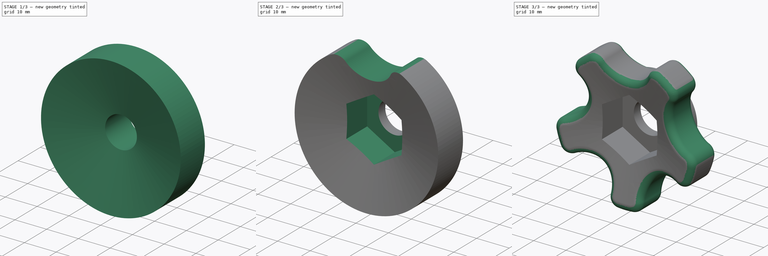
[diagram: build sequence overview — one tinted view per stage of 3, left to right]
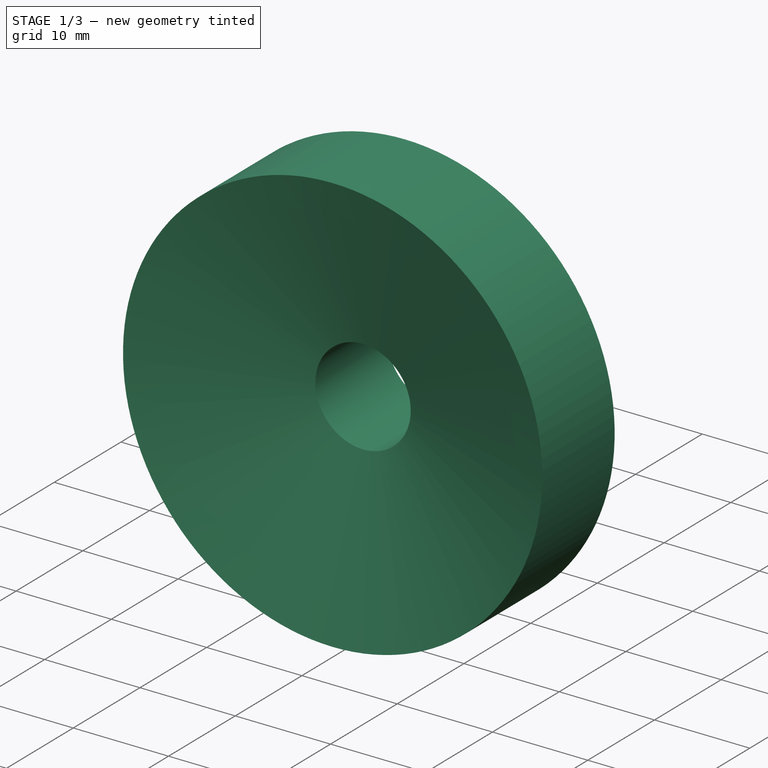
[diagram: stage 1 of 3 — iso view after this stage's code; geometry added in this stage tinted green]
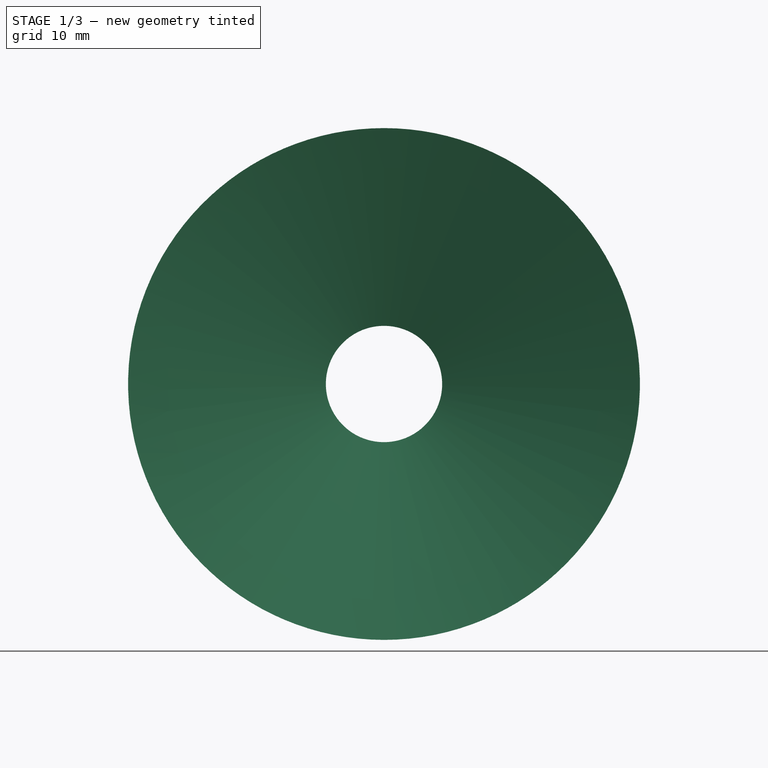
[diagram: stage 1 of 3 — front view after this stage's code; geometry added in this stage tinted green]
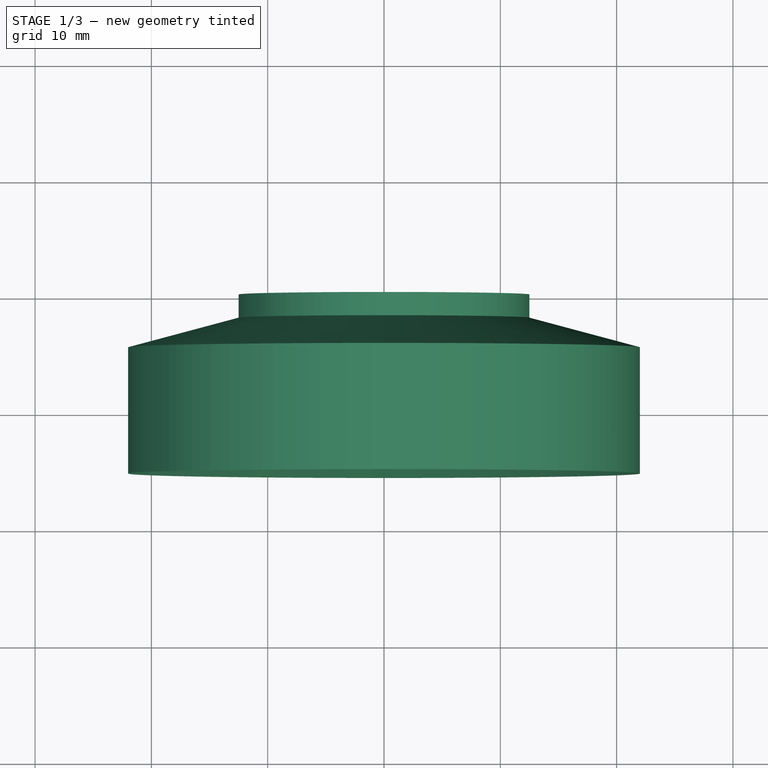
[diagram: stage 1 of 3 — top view after this stage's code; geometry added in this stage tinted green]
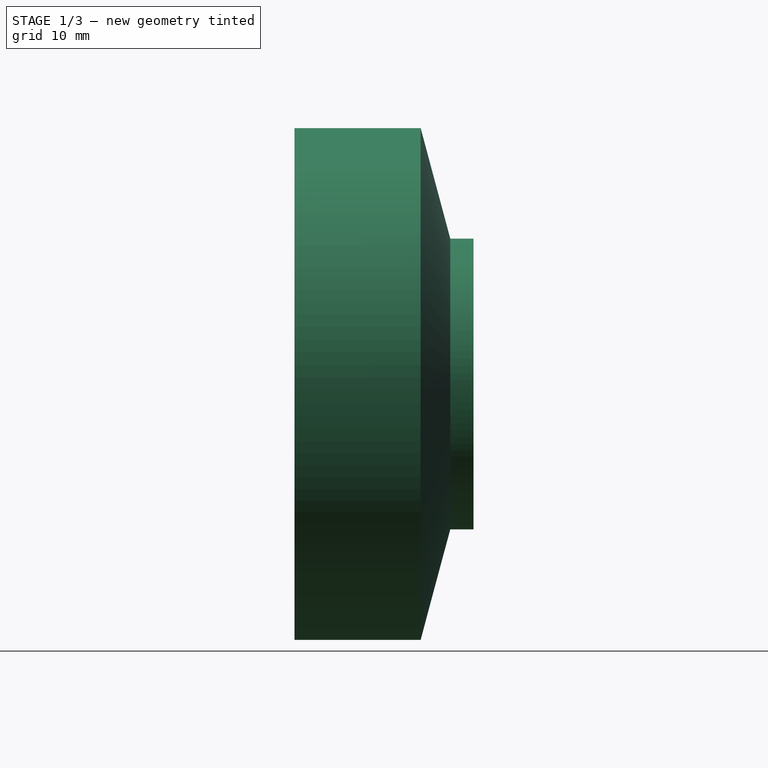
[diagram: stage 1 of 3 — right view after this stage's code; geometry added in this stage tinted green]
FCSTD DOCUMENT  (FreeCAD 0.20R28730 (Git))
Label: Spool Knob
License: All rights reserved
LicenseURL: http://en.wikipedia.org/wiki/All_rights_reserved
objects: Sketcher::SketchObject×4, PartDesign::Pocket×3, PartDesign::CoordinateSystem×2, PartDesign::Revolution×1, PartDesign::PolarPattern×1, PartDesign::Fillet×1, PartDesign::Body×1
note: 18 computed .brp shape members not serialized (recipe doc carries the construction recipe); baked Part::Feature solids carry a one-line shape summary decoded from their .brp

FEATURE [Sketcher::SketchObject] Sketch
  FullyConstrained = true
  MapMode = 5
  Placement = pos=(0,0,0) rot=(0.57735,0.57735,0.57735;2.0944rad)
  Support = -> [YZ_Plane]
  sketch-geometry (10):
    g0: LineSegment StartX=0 StartY=0 StartZ=0 EndX=0 EndY=12.5 EndZ=0
    g1: LineSegment StartX=0 StartY=12.5 StartZ=0 EndX=-2 EndY=12.5 EndZ=0
    g2: LineSegment StartX=-2 StartY=12.5 StartZ=0 EndX=-4.54552 EndY=22 EndZ=0
    g3: LineSegment StartX=-4.54552 StartY=22 StartZ=0 EndX=-15.3949 EndY=22 EndZ=0
    g4: LineSegment StartX=-15.3949 StartY=22 StartZ=0 EndX=-9.5 EndY=0 EndZ=0
    g5: LineSegment StartX=-9.5 StartY=0 StartZ=0 EndX=0 EndY=0 EndZ=0
    g6: LineSegment StartX=-3 StartY=0 StartZ=0 EndX=-3 EndY=9 EndZ=0
    g7: LineSegment StartX=-3 StartY=9 StartZ=0 EndX=0 EndY=9 EndZ=0
    g8: LineSegment StartX=-3 StartY=9 StartZ=0 EndX=-9.5 EndY=9 EndZ=0
    g9: LineSegment StartX=-9.5 StartY=0 StartZ=0 EndX=-9.5 EndY=9 EndZ=0
  constraints (29):
    c: Coincident(g-1,g0)
    c: PointOnObject(g0,g-2)
    c: Coincident(g0,g1)
    c: Horizontal(g1)
    c: Coincident(g1,g2)
    c: Coincident(g2,g3)
    c: Horizontal(g3)
    c: Coincident(g3,g4)
    c: PointOnObject(g4,g-1)
    c: Coincident(g4,g5)
    c: Coincident(g5,g0)
    c: Parallel(g4,g2)
    c: PointOnObject(g6,g5)
    c: Vertical(g6)
    c: Coincident(g7,g6)
    c: PointOnObject(g7,g0)
    c: Horizontal(g7)
    c: DistanceY(g6,g6) = 9
    c: DistanceX(g7,g7) = 3
    c: DistanceY(g0,g0) = 12.5
    c: DistanceX(g1,g1) = 2
    c: Coincident(g8,g6)
    c: Horizontal(g8)
    c: Coincident(g9,g8)
    c: Vertical(g9)
    c: DistanceX(g8,g8) = 6.5
    c: Coincident(g4,g9)
    c: DistanceY(g0,g2) = 22
    c: Angle(g1,g2) = 1.8326
FEATURE [PartDesign::Revolution] Revolution
  Angle = 360
  Axis = (1e-16,1,-1e-16)
  Base = (0,0,0)
  Placement = pos=(0,0,0) rot=(0.57735,0.57735,0.57735;2.0944rad)
  Profile = -> Sketch
  ReferenceAxis = -> Y_Axis
  Refine = true
FEATURE [Sketcher::SketchObject] Sketch001
  FullyConstrained = true
  MapMode = 5
  Placement = pos=(0,0,0) rot=(1,0,0;1.5708rad)
  Support = -> [XZ_Plane]
  sketch-geometry (7):
    g0: ArcOfCircle CenterX=-9.49989 CenterY=16.4545 CenterZ=0 NormalX=0 NormalY=0 NormalZ=1 AngleXU=0 Radius=3 StartAngle=0.528377 EndAngle=2.09439
    g1: ArcOfCircle CenterX=0 CenterY=22 CenterZ=0 NormalX=0 NormalY=0 NormalZ=1 AngleXU=0 Radius=8 StartAngle=3.66997 EndAngle=5.75481
    g2: ArcOfCircle CenterX=9.49989 CenterY=16.4545 CenterZ=0 NormalX=0 NormalY=0 NormalZ=1 AngleXU=0 Radius=3 StartAngle=1.0472 EndAngle=2.61322
    g3: LineSegment StartX=10.9999 StartY=19.0526 StartZ=0 EndX=9.49989 EndY=16.4545 EndZ=0
    g4: LineSegment StartX=-10.9999 StartY=19.0526 StartZ=0 EndX=-10.9999 EndY=24.0526 EndZ=0
    g5: LineSegment StartX=-10.9999 StartY=24.0526 StartZ=0 EndX=10.9999 EndY=24.0526 EndZ=0
    g6: LineSegment StartX=10.9999 StartY=24.0526 StartZ=0 EndX=10.9999 EndY=19.0526 EndZ=0
  constraints (20):
    c: Tangent(g1,g0) = 1.5708
    c: Tangent(g2,g1) = 1.5708
    c: PointOnObject(g1,g-2)
    c: Horizontal(g0,g2)
    c: Coincident(g3,g2)
    c: Coincident(g3,g2)
    c: Radius(g1) = 8
    c: Radius(g0) = 3
    c: Coincident(g0,g4)
    c: Coincident(g4,g5)
    c: Horizontal(g5)
    c: Coincident(g5,g6)
    c: Coincident(g6,g2)
    c: Vertical(g6)
    c: Equal(g6,g4)
    c: DistanceY(g4,g4) = 5
    c: DistanceY(g-1,g1) = 22
    c: Distance(g2,g-1) = 22
    c: Symmetric(g0,g2,g-2)
    c: PointOnObject(g-1,g3)
FEATURE [Sketcher::SketchObject] Sketch002
  FullyConstrained = true
  MapMode = 5
  Placement = pos=(0,0,0) rot=(1,0,0;1.5708rad)
  Support = -> [XZ_Plane]
  sketch-geometry (1):
    g0: Circle CenterX=0 CenterY=0 CenterZ=0 NormalX=0 NormalY=0 NormalZ=1 AngleXU=0 Radius=5
  constraints (2):
    c: Coincident(g0,g-1)
    c: Diameter(g0) = 10
FEATURE [Sketcher::SketchObject] Sketch003
  AttachmentOffset = pos=(0,0,3) rot=(0,0,1;0rad)
  FullyConstrained = true
  MapMode = 5
  Placement = pos=(0,-3,-7e-16) rot=(1,0,0;1.5708rad)
  Support = -> [XZ_Plane]
  sketch-geometry (7):
    g0: LineSegment StartX=0 StartY=9.75722 StartZ=0 EndX=-8.45 EndY=4.87861 EndZ=0
    g1: LineSegment StartX=-8.45 StartY=4.87861 StartZ=0 EndX=-8.45 EndY=-4.87861 EndZ=0
    g2: LineSegment StartX=-8.45 StartY=-4.87861 StartZ=0 EndX=1.8e-15 EndY=-9.75722 EndZ=0
    g3: LineSegment StartX=1.8e-15 StartY=-9.75722 StartZ=0 EndX=8.45 EndY=-4.87861 EndZ=0
    g4: LineSegment StartX=8.45 StartY=-4.87861 StartZ=0 EndX=8.45 EndY=4.87861 EndZ=0
    g5: LineSegment StartX=8.45 StartY=4.87861 StartZ=0 EndX=0 EndY=9.75722 EndZ=0
    g6: Circle CenterX=0 CenterY=0 CenterZ=0 NormalX=0 NormalY=0 NormalZ=1 AngleXU=0 Radius=9.75722
  constraints (16):
    c: Coincident(g0,g1)
    c: Coincident(g1,g2)
    c: Coincident(g2,g3)
    c: Coincident(g3,g4)
    c: Coincident(g4,g5)
    c: Coincident(g5,g0)
    c: Equal(g0, g1-g5) x5
    c: PointOnObject(g0,g6)
    c: PointOnObject(g1,g6)
    c: PointOnObject(g2,g6)
    c: PointOnObject(g3,g6)
    c: PointOnObject(g4,g6)
    c: PointOnObject(g5,g6)
    c: Coincident(g6,g-1)
    c: PointOnObject(g5,g-2)
    c: DistanceX(g0,g4) = 16.9
FEATURE [PartDesign::Pocket] Pocket
  BaseFeature = -> Revolution
  Direction = (0,1,2e-16)
  Length = 5
  Length2 = 5
  Placement = pos=(0,0,0) rot=(0.57735,0.57735,0.57735;2.0944rad)
  Profile = -> Sketch002
  ReferenceAxis = -> Sketch002 [N_Axis]
  Refine = true
  Reversed = true
  Type = 1
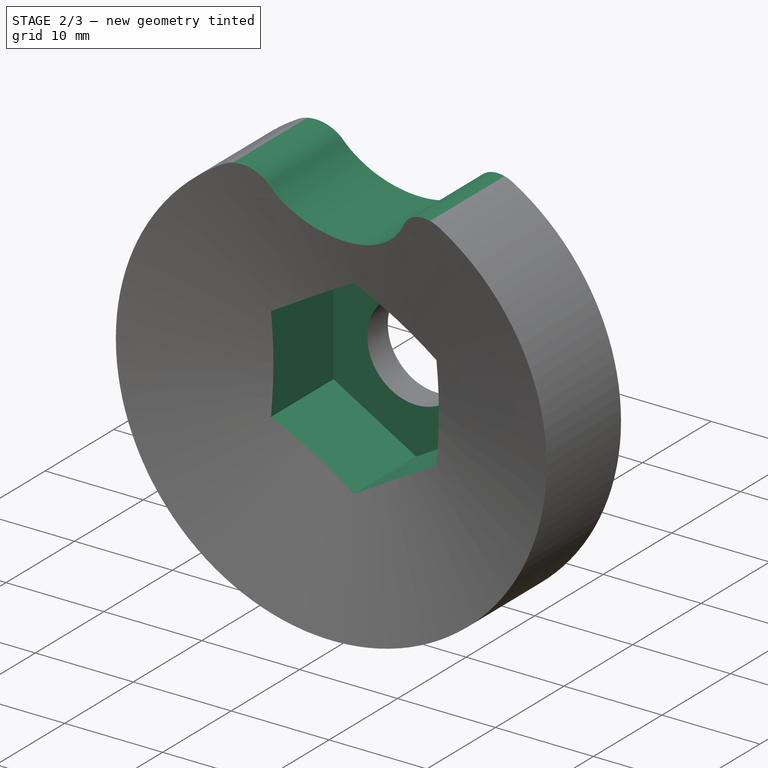
[diagram: stage 2 of 3 — iso view after this stage's code; geometry added in this stage tinted green]
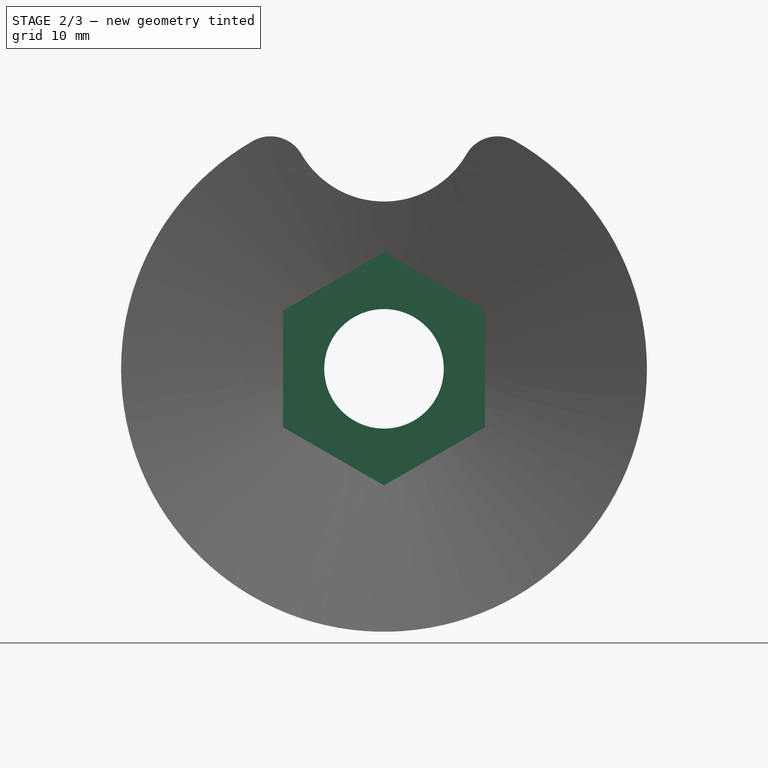
[diagram: stage 2 of 3 — front view after this stage's code; geometry added in this stage tinted green]
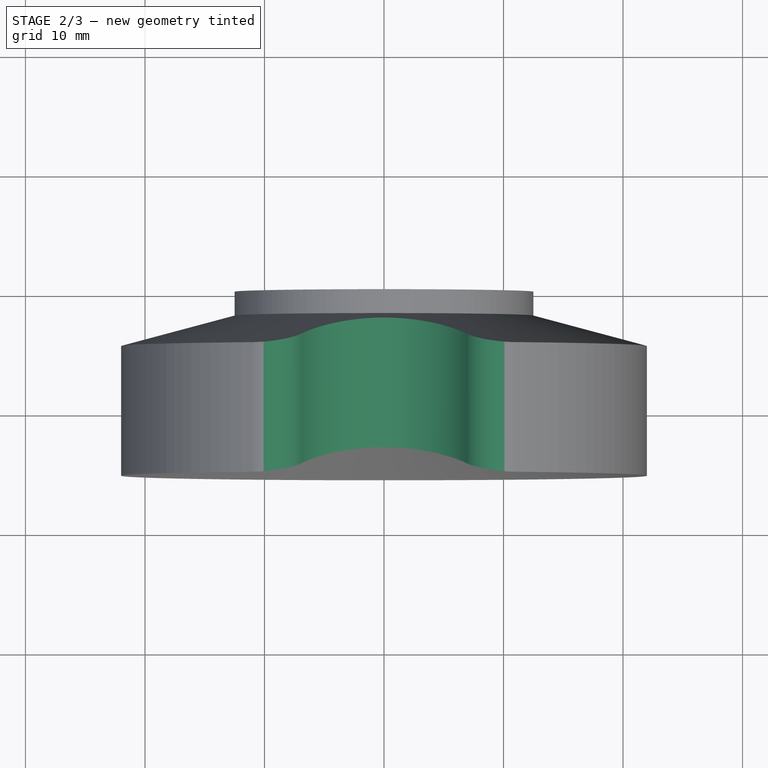
[diagram: stage 2 of 3 — top view after this stage's code; geometry added in this stage tinted green]
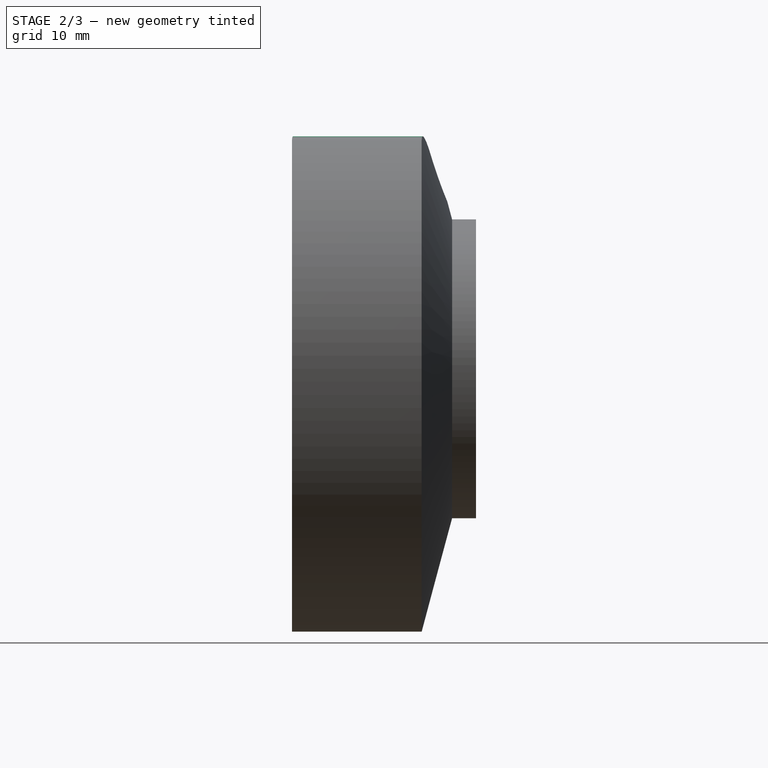
[diagram: stage 2 of 3 — right view after this stage's code; geometry added in this stage tinted green]
FEATURE [PartDesign::Pocket] Pocket001
  BaseFeature = -> Pocket
  Direction = (0,1,2e-16)
  Length = 5
  Length2 = 5
  Placement = pos=(0,0,0) rot=(0.57735,0.57735,0.57735;2.0944rad)
  Profile = -> Sketch003
  ReferenceAxis = -> Sketch003 [N_Axis]
  Refine = true
  Reversed = true
  Type = 1
FEATURE [PartDesign::Pocket] Pocket002
  BaseFeature = -> Pocket001
  Direction = (0,1,2e-16)
  Length = 5
  Length2 = 5
  Placement = pos=(0,0,0) rot=(0.57735,0.57735,0.57735;2.0944rad)
  Profile = -> Sketch001
  ReferenceAxis = -> Sketch001 [N_Axis]
  Refine = true
  Reversed = true
  Type = 1
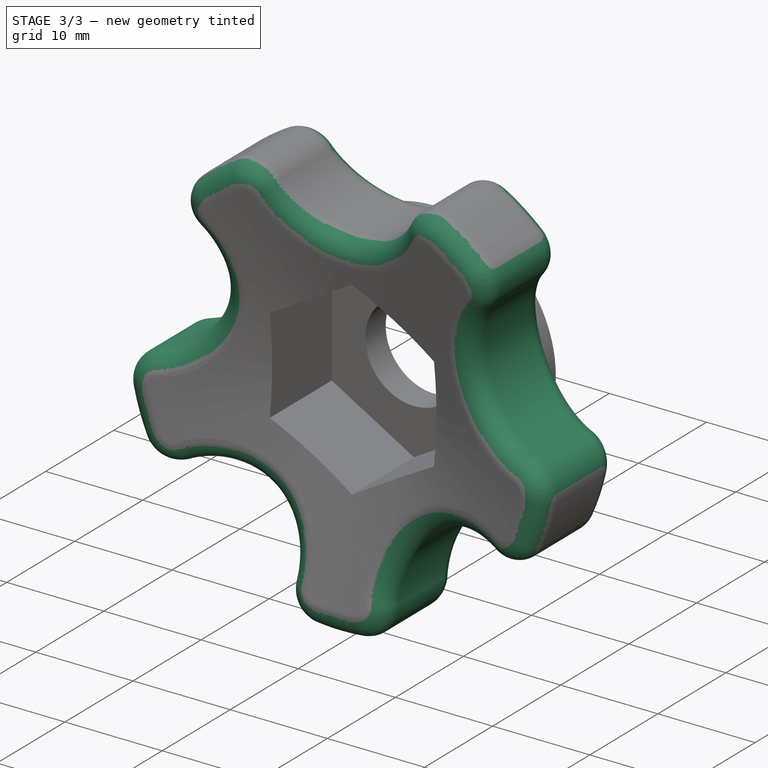
[diagram: stage 3 of 3 — iso view after this stage's code; geometry added in this stage tinted green]
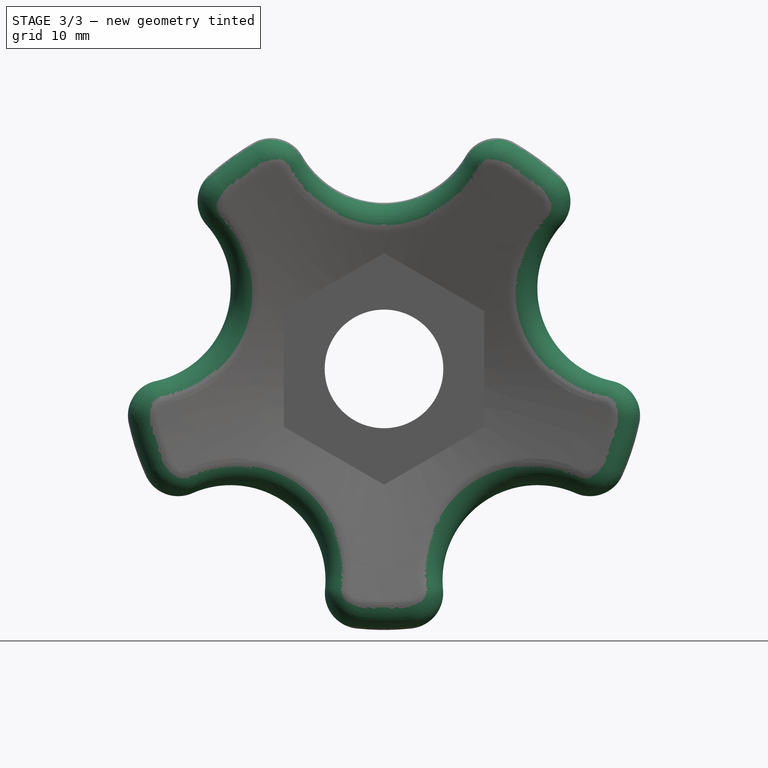
[diagram: stage 3 of 3 — front view after this stage's code; geometry added in this stage tinted green]
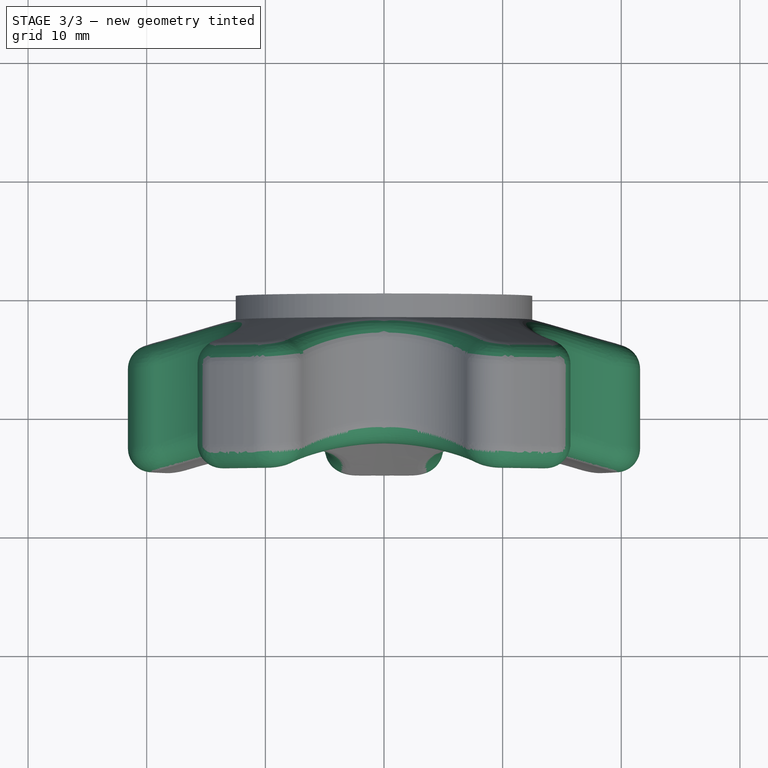
[diagram: stage 3 of 3 — top view after this stage's code; geometry added in this stage tinted green]
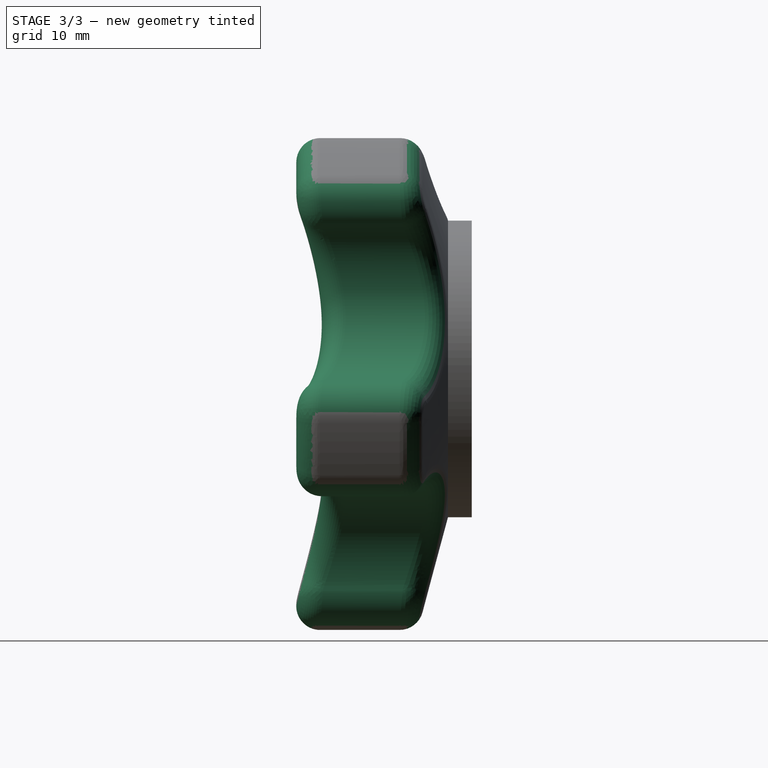
[diagram: stage 3 of 3 — right view after this stage's code; geometry added in this stage tinted green]
FEATURE [PartDesign::PolarPattern] PolarPattern
  Angle = 360
  Axis = -> Sketch001 [N_Axis]
  BaseFeature = -> Pocket002
  Occurrences = 5
  Originals = -> [Pocket002]
  Placement = pos=(0,0,0) rot=(0.57735,0.57735,0.57735;2.0944rad)
  Refine = true
FEATURE [PartDesign::Fillet] Fillet
  Base = -> PolarPattern [Edge25,Edge71]
  BaseFeature = -> PolarPattern
  Placement = pos=(0,0,0) rot=(0.57735,0.57735,0.57735;2.0944rad)
  Radius = 2
  Refine = true
  SupportTransform = false
  UseAllEdges = false
FEATURE [PartDesign::CoordinateSystem] LCS_1  label="LCS_Spool_Screw_Knob_1"
  AttacherType = Attacher::AttachEngine3D
  MapMode = 11
  Placement = pos=(0,0,0) rot=(0.57735,-0.57735,-0.57735;4.18879rad)
  Support = -> [Fillet]
FEATURE [PartDesign::CoordinateSystem] LCS_Spool_Screw_Knob_2
  AttacherType = Attacher::AttachEngine3D
  MapMode = 11
  Placement = pos=(-9e-16,-3,3e-16) rot=(-0.57735,0.57735,0.57735;2.0944rad)
  Support = -> [Fillet]
FEATURE [PartDesign::Body] Body  label="Spool_Knob"
  Group = -> [Sketch,Revolution,Sketch001,Sketch002,Sketch003,Pocket,Pocket001,Pocket002,PolarPattern,Fillet,LCS_1,LCS_Spool_Screw_Knob_2]
  Origin = -> Origin
  Tip = -> Fillet
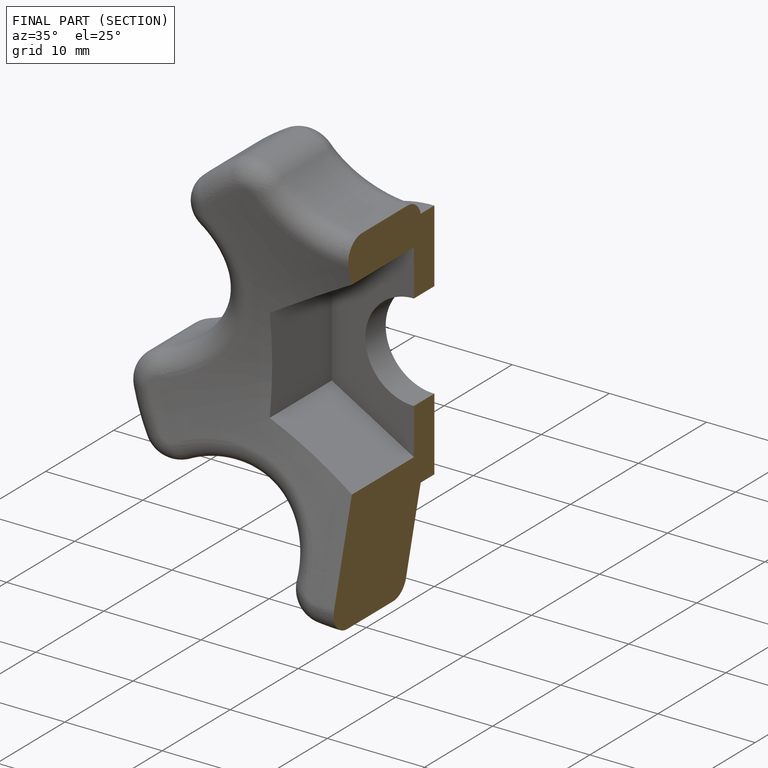
[diagram: finished part — half-section view (interior)]
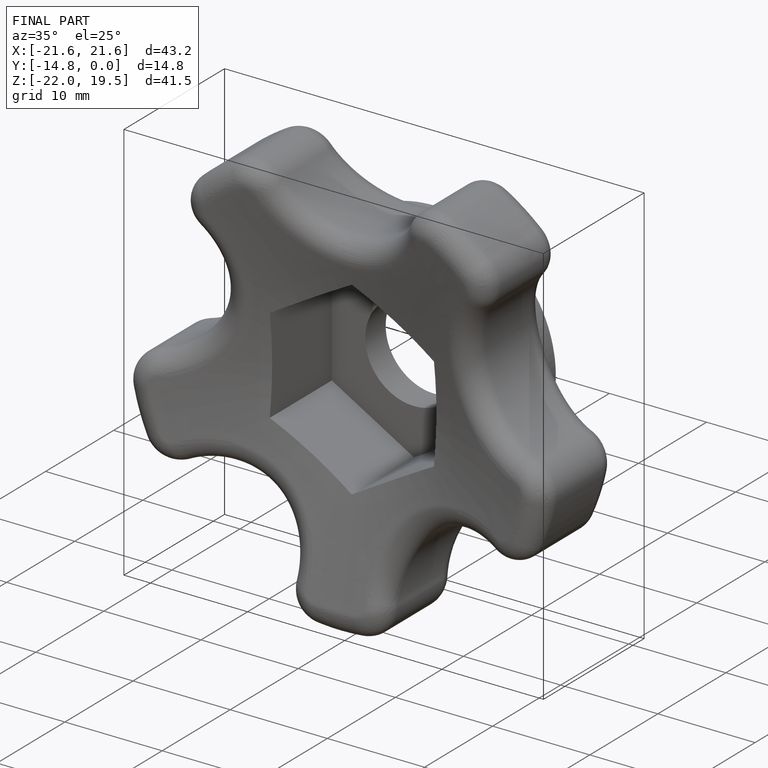
[diagram: finished part — iso view with bounding-box wireframe]
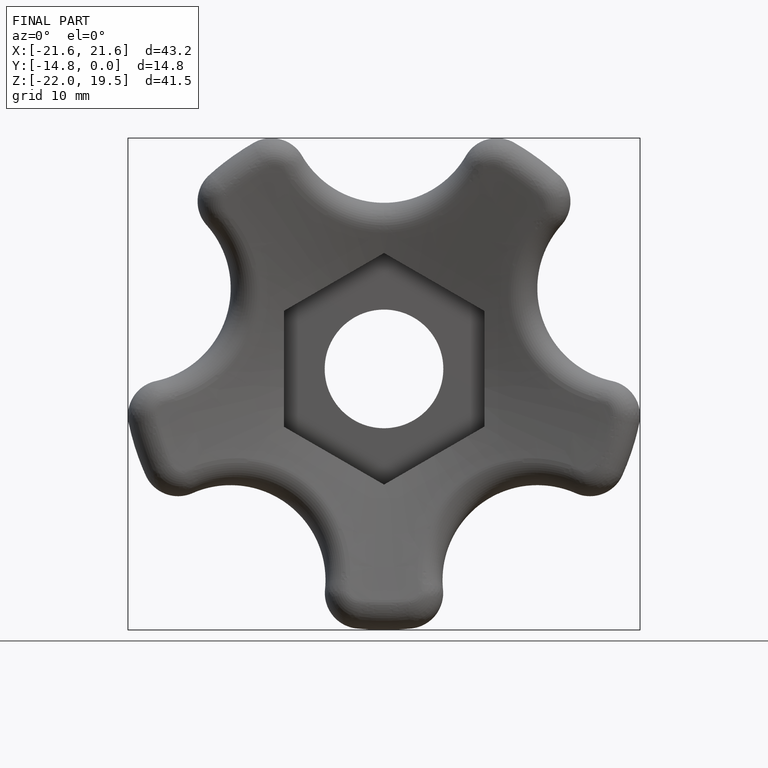
[diagram: finished part — front view with bounding-box wireframe]
